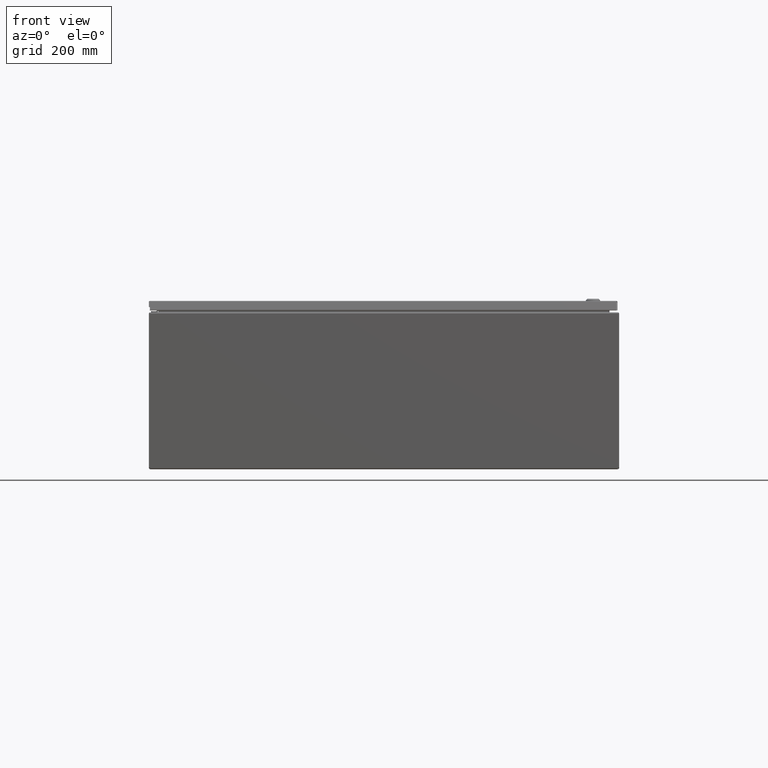
[diagram: clean part render]
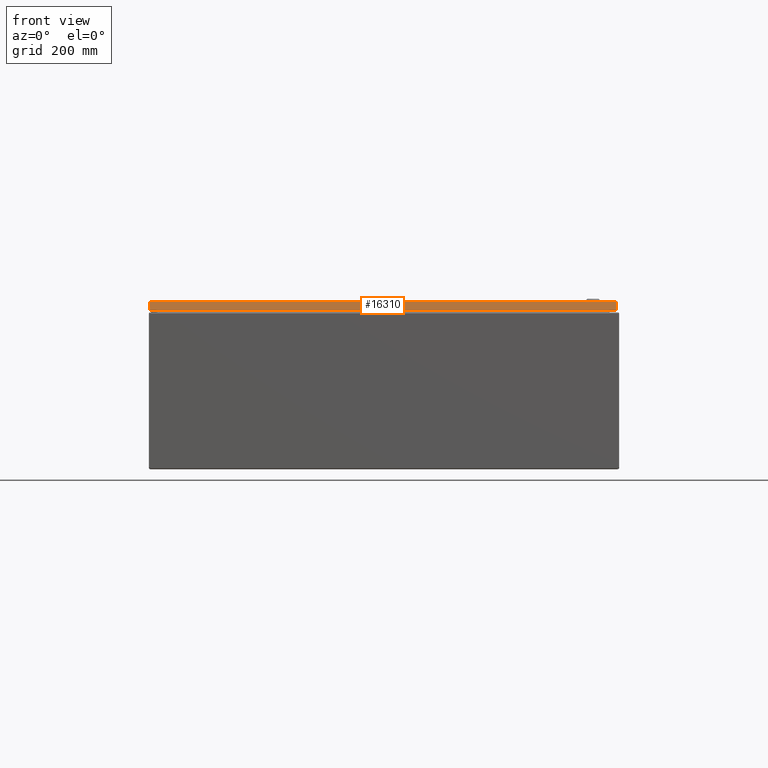
[diagram: same view with one face highlighted and labeled with its STEP entity id]
A machine part, front view. The second image highlights one B-rep face of the part: STEP entity #16310.
In plain terms, the highlighted planar face has unit normal (-0, -0.9397, 0.342).
Its self-contained STEP definition (entity closure, byte-faithful):
#620=PLANE('',#17605);
#1750=LINE('',#31782,#2977);
#1769=LINE('',#31940,#2996);
#1775=LINE('',#32016,#3002);
#1793=LINE('',#32342,#3020);
#2977=VECTOR('',#20698,0.676219133175126);
#2996=VECTOR('',#20729,35.7255857864376);
#3002=VECTOR('',#20739,0.676219133175147);
#3020=VECTOR('',#20781,35.7255857864376);
#4465=FACE_OUTER_BOUND('',#5626,.T.);
#5626=EDGE_LOOP('',(#12846,#12847,#12848,#12849));
#7526=VERTEX_POINT('',#31779);
#7527=VERTEX_POINT('',#31781);
#7541=VERTEX_POINT('',#31939);
#7546=VERTEX_POINT('',#32014);
#9348=EDGE_CURVE('',#7527,#7526,#1750,.T.);
#9375=EDGE_CURVE('',#7527,#7541,#1769,.T.);
#9384=EDGE_CURVE('',#7541,#7546,#1775,.T.);
#9417=EDGE_CURVE('',#7526,#7546,#1793,.T.);
#12846=ORIENTED_EDGE('',*,*,#9417,.T.);
#12847=ORIENTED_EDGE('',*,*,#9384,.F.);
#12848=ORIENTED_EDGE('',*,*,#9375,.F.);
#12849=ORIENTED_EDGE('',*,*,#9348,.T.);
#16310=ADVANCED_FACE('',(#4465),#620,.T.);
#17605=AXIS2_PLACEMENT_3D('',#32344,#20783,#20784);
#20698=DIRECTION('',(4.96421152541581E-014,0.342020143325691,0.9396926207859));
#20729=DIRECTION('',(-1.,0.,0.));
#20739=DIRECTION('',(-1.35740158898084E-015,0.342020143325664,0.93969262078591));
#20781=DIRECTION('',(-1.,-7.67471543622923E-016,2.22574437846458E-016));
#20783=DIRECTION('center_axis',(7.97312287338507E-016,-0.939692620785909,
0.342020143325666));
#20784=DIRECTION('ref_axis',(1.,0.,-4.22994972382185E-016));
#31779=CARTESIAN_POINT('',(35.361658870313,-35.3188060383127,0.00474762008498624));
#31781=CARTESIAN_POINT('',(35.361658870313,-35.5500866031608,-0.630690509393908));
#31782=CARTESIAN_POINT('',(35.361658870313,-35.3188060383127,0.00474762008499598));
#31939=CARTESIAN_POINT('',(-0.363926916124622,-35.5500866031609,-0.630690509393906));
#31940=CARTESIAN_POINT('',(137.231449869614,-35.5500866031608,-0.630690509393906));
#32014=CARTESIAN_POINT('',(-0.363926916124623,-35.3188060383127,0.00474762008500261));
#32016=CARTESIAN_POINT('',(-0.363926916124623,-35.3188060383127,0.00474762008502476));
#32342=CARTESIAN_POINT('',(17.4988659770942,-35.3188060383127,0.00474762008502336));
#32344=CARTESIAN_POINT('Origin',(17.4988659770942,-35.4247787943112,-0.286410134098085));